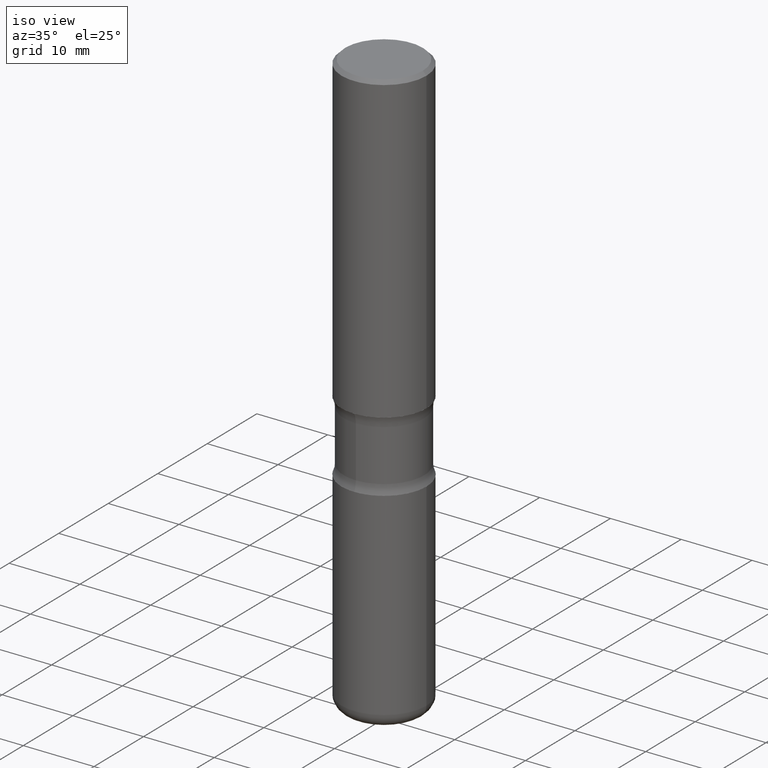
[diagram: clean part render]
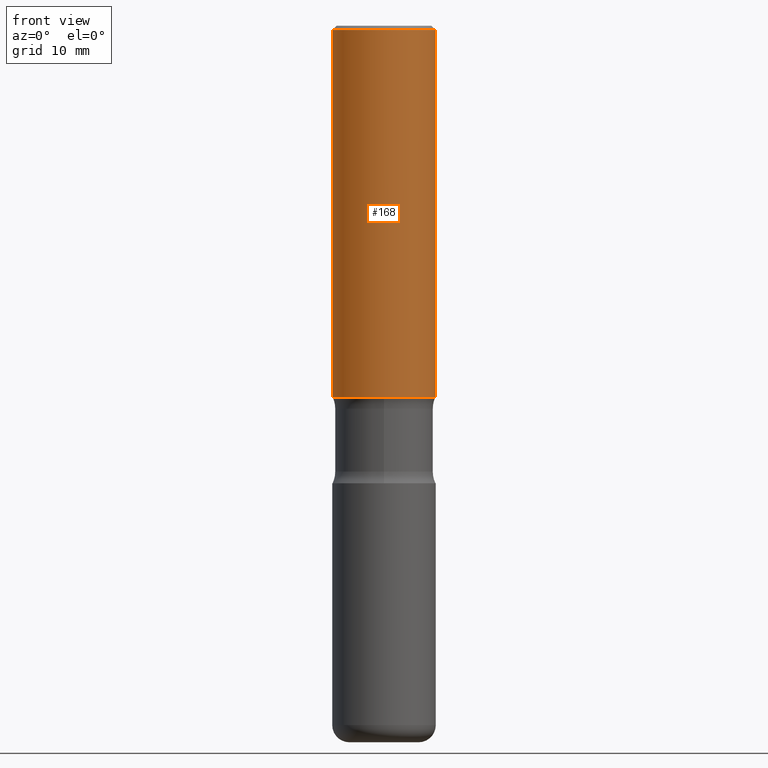
[diagram: tour spotlight — one face highlighted and labeled with its STEP entity id]
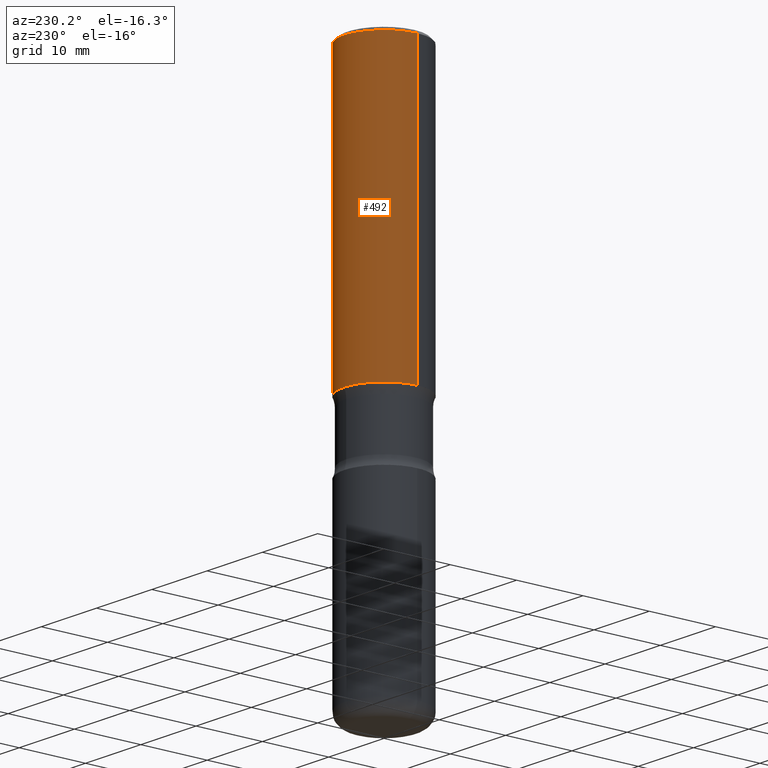
[diagram: tour spotlight — one face highlighted and labeled with its STEP entity id]
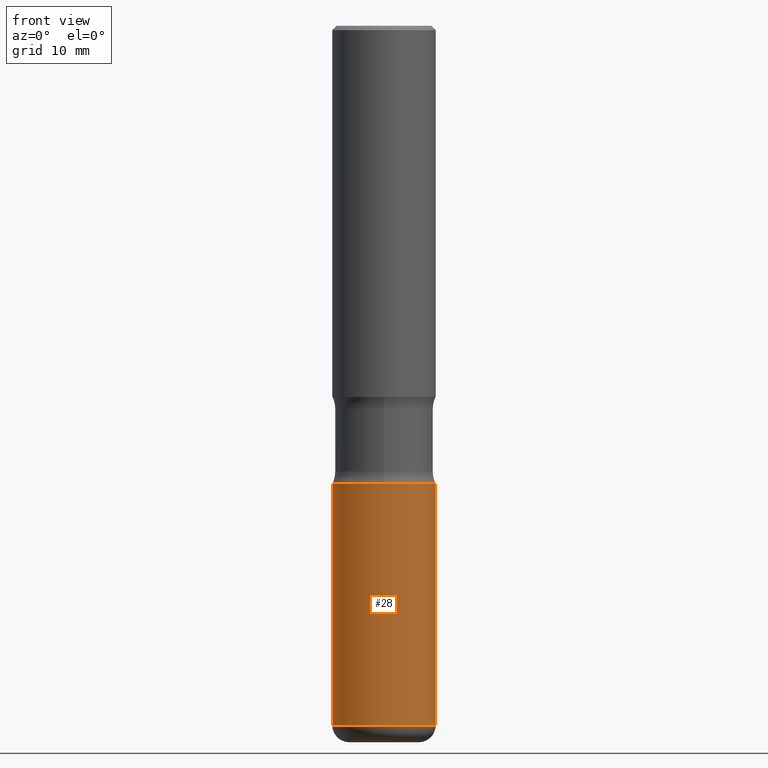
[diagram: tour spotlight — one face highlighted and labeled with its STEP entity id]
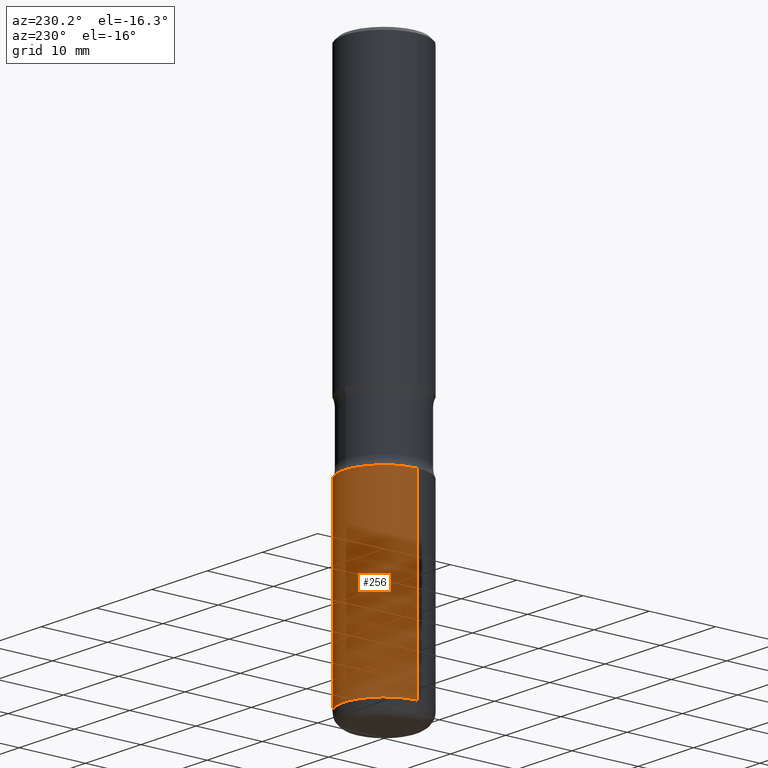
[diagram: tour spotlight — one face highlighted and labeled with its STEP entity id]
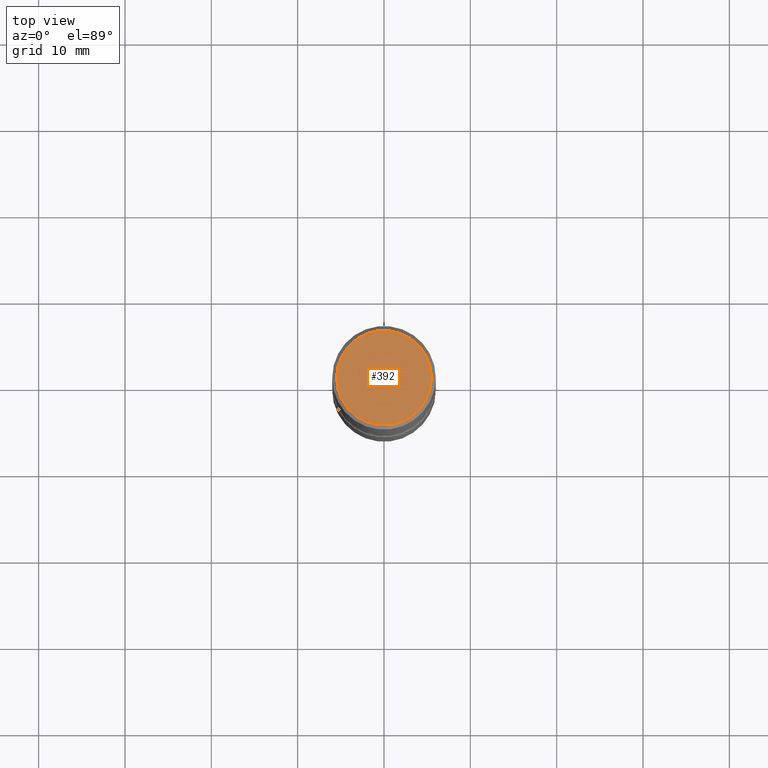
[diagram: tour spotlight — one face highlighted and labeled with its STEP entity id]
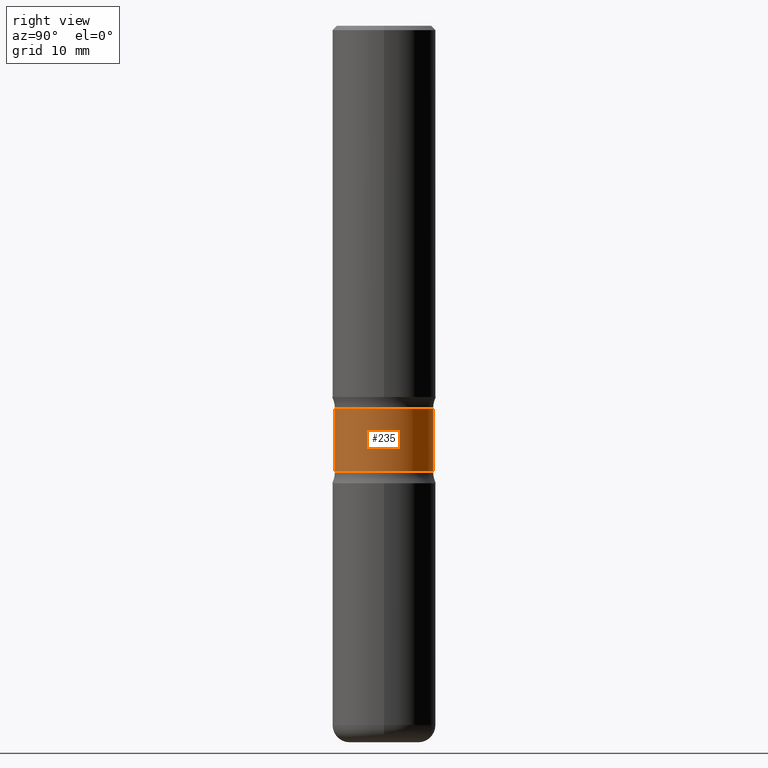
[diagram: tour spotlight — one face highlighted and labeled with its STEP entity id]
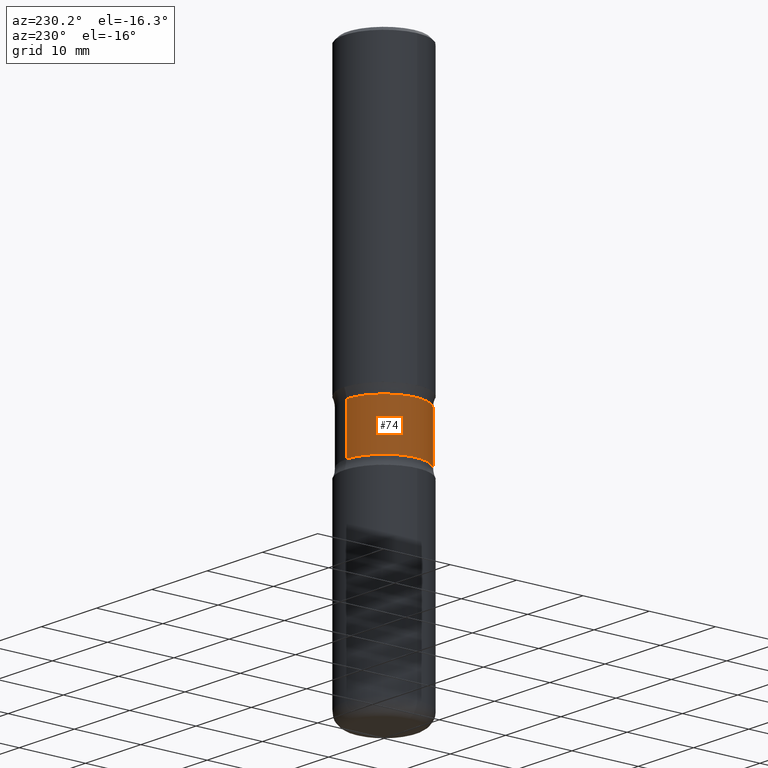
[diagram: tour spotlight — one face highlighted and labeled with its STEP entity id]
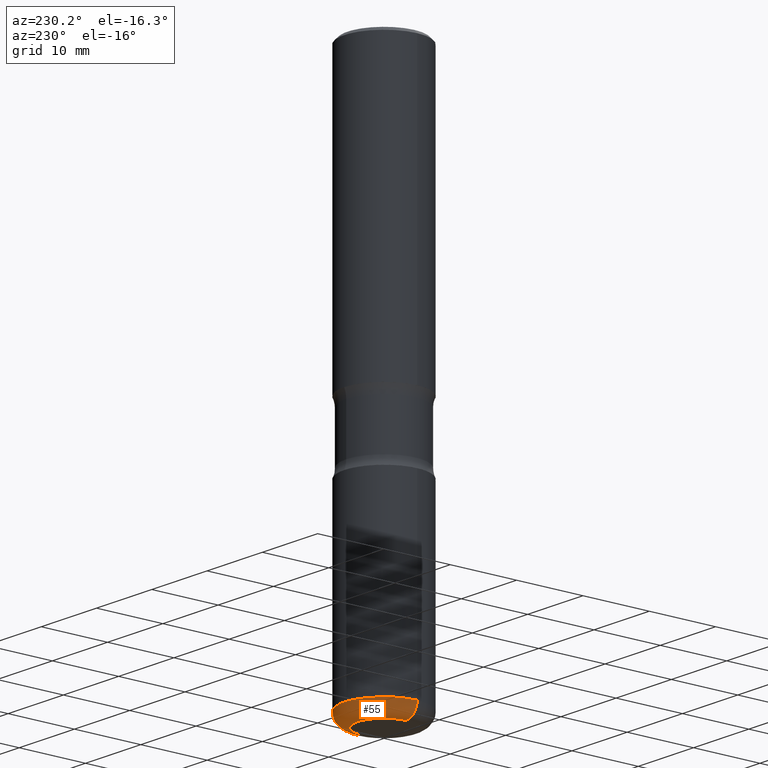
[diagram: tour spotlight — one face highlighted and labeled with its STEP entity id]
A machine part: a face-by-face anatomy tour. The part has 20 B-rep faces; the first image is the clean iso view, then the 8 largest visible faces are spotlighted one at a time (largest first), each with its STEP entity span.

Face 1 — front view, entity #168. In plain terms, the highlighted cylindrical surface (partial cylindrical patch) has radius 5.9995 mm, axis along (-0, 0, 1).
Definition (entity closure, byte-faithful):
#1 = CARTESIAN_POINT ( 'NONE',  ( -0.2362000000000004374, -1.311977250786849481E-15, -1.692899999999999627 ) ) ;
#3 = AXIS2_PLACEMENT_3D ( 'NONE', #71, #399, #204 ) ;
#33 = DIRECTION ( 'NONE',  ( -2.445468806185136877E-29, 3.491481338843145188E-15, 1.000000000000000000 ) ) ;
#44 = DIRECTION ( 'NONE',  ( -2.445468806185136597E-29, 3.491481338843145583E-15, 1.000000000000000000 ) ) ;
#71 = CARTESIAN_POINT ( 'NONE',  ( 4.890937612370289799E-31, -6.982962677686315028E-17, -0.02000000000000006981 ) ) ;
#79 = CIRCLE ( 'NONE', #270, 0.2362000000000004374 ) ;
#85 = CARTESIAN_POINT ( 'NONE',  ( -0.2362000000000000210, 1.579546157692633424E-15, -0.02000000000000006981 ) ) ;
#86 = ORIENTED_EDGE ( 'NONE', *, *, #292, .T. ) ;
#94 = DIRECTION ( 'NONE',  ( 1.000000000000000000, -6.982962677686267499E-15, 0.000000000000000000 ) ) ;
#114 = EDGE_CURVE ( 'NONE', #144, #373, #135, .T. ) ;
#135 = LINE ( 'NONE', #420, #328 ) ;
#144 = VERTEX_POINT ( 'NONE', #1 ) ;
#168 = ADVANCED_FACE ( 'NONE', ( #340 ), #258, .T. ) ;
#194 = CARTESIAN_POINT ( 'NONE',  ( 0.000000000000000000, 0.000000000000000000, 0.000000000000000000 ) ) ;
#204 = DIRECTION ( 'NONE',  ( 1.000000000000000000, -6.982962677686267499E-15, 0.000000000000000000 ) ) ;
#219 = CIRCLE ( 'NONE', #3, 0.2362000000000000210 ) ;
#258 = CYLINDRICAL_SURFACE ( 'NONE', #521, 0.2362000000000002431 ) ;
#262 = EDGE_LOOP ( 'NONE', ( #552, #325, #86, #408 ) ) ;
#266 = CARTESIAN_POINT ( 'NONE',  ( 0.2362000000000000210, -1.690279253850499166E-15, -0.02000000000000006981 ) ) ;
#270 = AXIS2_PLACEMENT_3D ( 'NONE', #429, #44, #94 ) ;
#292 = EDGE_CURVE ( 'NONE', #464, #394, #473, .T. ) ;
#312 = VECTOR ( 'NONE', #342, 39.37007874015748143 ) ;
#325 = ORIENTED_EDGE ( 'NONE', *, *, #335, .T. ) ;
#328 = VECTOR ( 'NONE', #33, 39.37007874015748143 ) ;
#335 = EDGE_CURVE ( 'NONE', #144, #464, #79, .T. ) ;
#340 = FACE_OUTER_BOUND ( 'NONE', #262, .T. ) ;
#342 = DIRECTION ( 'NONE',  ( -2.445468806185136877E-29, 3.491481338843145188E-15, 1.000000000000000000 ) ) ;
#373 = VERTEX_POINT ( 'NONE', #85 ) ;
#394 = VERTEX_POINT ( 'NONE', #266 ) ;
#399 = DIRECTION ( 'NONE',  ( -2.445468806185136597E-29, 3.491481338843145583E-15, 1.000000000000000000 ) ) ;
#408 = ORIENTED_EDGE ( 'NONE', *, *, #535, .F. ) ;
#420 = CARTESIAN_POINT ( 'NONE',  ( -0.2362000000000002431, 1.678301941865358366E-15, -1.161852468318209878E-29 ) ) ;
#427 = DIRECTION ( 'NONE',  ( -2.445468806185136597E-29, 3.491481338843145583E-15, 1.000000000000000000 ) ) ;
#429 = CARTESIAN_POINT ( 'NONE',  ( 4.139934141990816676E-29, -5.910728758527559497E-15, -1.692899999999999627 ) ) ;
#457 = CARTESIAN_POINT ( 'NONE',  ( 0.2362000000000004374, -7.560104542997059178E-15, -1.692899999999999627 ) ) ;
#464 = VERTEX_POINT ( 'NONE', #457 ) ;
#473 = LINE ( 'NONE', #560, #312 ) ;
#519 = DIRECTION ( 'NONE',  ( 1.000000000000000000, -6.982962677686266711E-15, 4.876176775795935793E-29 ) ) ;
#521 = AXIS2_PLACEMENT_3D ( 'NONE', #194, #427, #519 ) ;
#535 = EDGE_CURVE ( 'NONE', #373, #394, #219, .T. ) ;
#552 = ORIENTED_EDGE ( 'NONE', *, *, #114, .F. ) ;
#560 = CARTESIAN_POINT ( 'NONE',  ( 0.2362000000000002431, -1.649375784469497906E-15, 1.151752954443001209E-29 ) ) ;

Face 2 — auxiliary view, entity #492. In plain terms, the highlighted cylindrical surface (partial cylindrical patch) has radius 5.9995 mm, axis along (-0, 0, 1).
Definition (entity closure, byte-faithful):
#1 = CARTESIAN_POINT ( 'NONE',  ( -0.2362000000000004374, -1.311977250786849481E-15, -1.692899999999999627 ) ) ;
#17 = AXIS2_PLACEMENT_3D ( 'NONE', #154, #543, #280 ) ;
#33 = DIRECTION ( 'NONE',  ( -2.445468806185136877E-29, 3.491481338843145188E-15, 1.000000000000000000 ) ) ;
#63 = ORIENTED_EDGE ( 'NONE', *, *, #401, .F. ) ;
#72 = ORIENTED_EDGE ( 'NONE', *, *, #292, .F. ) ;
#85 = CARTESIAN_POINT ( 'NONE',  ( -0.2362000000000000210, 1.579546157692633424E-15, -0.02000000000000006981 ) ) ;
#114 = EDGE_CURVE ( 'NONE', #144, #373, #135, .T. ) ;
#127 = EDGE_CURVE ( 'NONE', #464, #144, #436, .T. ) ;
#135 = LINE ( 'NONE', #420, #328 ) ;
#144 = VERTEX_POINT ( 'NONE', #1 ) ;
#154 = CARTESIAN_POINT ( 'NONE',  ( 4.890937612370289799E-31, -6.982962677686315028E-17, -0.02000000000000006981 ) ) ;
#230 = ORIENTED_EDGE ( 'NONE', *, *, #127, .T. ) ;
#249 = EDGE_LOOP ( 'NONE', ( #230, #303, #63, #72 ) ) ;
#266 = CARTESIAN_POINT ( 'NONE',  ( 0.2362000000000000210, -1.690279253850499166E-15, -0.02000000000000006981 ) ) ;
#280 = DIRECTION ( 'NONE',  ( 1.000000000000000000, -6.982962677686267499E-15, 0.000000000000000000 ) ) ;
#291 = AXIS2_PLACEMENT_3D ( 'NONE', #421, #332, #460 ) ;
#292 = EDGE_CURVE ( 'NONE', #464, #394, #473, .T. ) ;
#303 = ORIENTED_EDGE ( 'NONE', *, *, #114, .T. ) ;
#312 = VECTOR ( 'NONE', #342, 39.37007874015748143 ) ;
#327 = DIRECTION ( 'NONE',  ( -2.445468806185136597E-29, 3.491481338843145583E-15, 1.000000000000000000 ) ) ;
#328 = VECTOR ( 'NONE', #33, 39.37007874015748143 ) ;
#332 = DIRECTION ( 'NONE',  ( -2.445468806185136597E-29, 3.491481338843145583E-15, 1.000000000000000000 ) ) ;
#338 = AXIS2_PLACEMENT_3D ( 'NONE', #512, #327, #435 ) ;
#342 = DIRECTION ( 'NONE',  ( -2.445468806185136877E-29, 3.491481338843145188E-15, 1.000000000000000000 ) ) ;
#373 = VERTEX_POINT ( 'NONE', #85 ) ;
#374 = CYLINDRICAL_SURFACE ( 'NONE', #338, 0.2362000000000002431 ) ;
#394 = VERTEX_POINT ( 'NONE', #266 ) ;
#401 = EDGE_CURVE ( 'NONE', #394, #373, #456, .T. ) ;
#420 = CARTESIAN_POINT ( 'NONE',  ( -0.2362000000000002431, 1.678301941865358366E-15, -1.161852468318209878E-29 ) ) ;
#421 = CARTESIAN_POINT ( 'NONE',  ( 4.139934141990816676E-29, -5.910728758527559497E-15, -1.692899999999999627 ) ) ;
#435 = DIRECTION ( 'NONE',  ( 1.000000000000000000, -6.982962677686266711E-15, 4.876176775795935793E-29 ) ) ;
#436 = CIRCLE ( 'NONE', #291, 0.2362000000000004374 ) ;
#456 = CIRCLE ( 'NONE', #17, 0.2362000000000000210 ) ;
#457 = CARTESIAN_POINT ( 'NONE',  ( 0.2362000000000004374, -7.560104542997059178E-15, -1.692899999999999627 ) ) ;
#460 = DIRECTION ( 'NONE',  ( 1.000000000000000000, -6.982962677686267499E-15, 0.000000000000000000 ) ) ;
#464 = VERTEX_POINT ( 'NONE', #457 ) ;
#473 = LINE ( 'NONE', #560, #312 ) ;
#488 = FACE_OUTER_BOUND ( 'NONE', #249, .T. ) ;
#492 = ADVANCED_FACE ( 'NONE', ( #488 ), #374, .T. ) ;
#512 = CARTESIAN_POINT ( 'NONE',  ( 0.000000000000000000, 0.000000000000000000, 0.000000000000000000 ) ) ;
#543 = DIRECTION ( 'NONE',  ( -2.445468806185136597E-29, 3.491481338843145583E-15, 1.000000000000000000 ) ) ;
#560 = CARTESIAN_POINT ( 'NONE',  ( 0.2362000000000002431, -1.649375784469497906E-15, 1.151752954443001209E-29 ) ) ;

Face 3 — front view, entity #28. In plain terms, the highlighted cylindrical surface (partial cylindrical patch) has radius 5.9995 mm, axis along (-0, 0, 1).
Definition (entity closure, byte-faithful):
#5 = LINE ( 'NONE', #88, #352 ) ;
#10 = CIRCLE ( 'NONE', #184, 0.2362000000000002153 ) ;
#28 = ADVANCED_FACE ( 'NONE', ( #187 ), #261, .T. ) ;
#41 = CARTESIAN_POINT ( 'NONE',  ( -0.2362000000000002153, 1.678301941865358169E-15, -1.161852468318209878E-29 ) ) ;
#46 = EDGE_CURVE ( 'NONE', #152, #108, #57, .T. ) ;
#50 = DIRECTION ( 'NONE',  ( -2.445468806185136597E-29, 3.491481338843145583E-15, 1.000000000000000000 ) ) ;
#54 = ORIENTED_EDGE ( 'NONE', *, *, #387, .F. ) ;
#57 = CIRCLE ( 'NONE', #131, 0.2362000000000002153 ) ;
#88 = CARTESIAN_POINT ( 'NONE',  ( 0.2362000000000002153, -1.649375784469497708E-15, 1.151752954443001069E-29 ) ) ;
#105 = CARTESIAN_POINT ( 'NONE',  ( 0.2362000000000003264, -1.278370977404028805E-14, -3.188999999999999169 ) ) ;
#106 = DIRECTION ( 'NONE',  ( -2.445468806185136597E-29, 3.491481338843145583E-15, 1.000000000000000000 ) ) ;
#108 = VERTEX_POINT ( 'NONE', #105 ) ;
#131 = AXIS2_PLACEMENT_3D ( 'NONE', #151, #106, #273 ) ;
#141 = EDGE_LOOP ( 'NONE', ( #243, #316, #334, #54 ) ) ;
#151 = CARTESIAN_POINT ( 'NONE',  ( 7.798600022924399065E-29, -1.113433398957078995E-14, -3.188999999999999169 ) ) ;
#152 = VERTEX_POINT ( 'NONE', #434 ) ;
#160 = EDGE_CURVE ( 'NONE', #152, #322, #384, .T. ) ;
#184 = AXIS2_PLACEMENT_3D ( 'NONE', #339, #254, #472 ) ;
#187 = FACE_OUTER_BOUND ( 'NONE', #141, .T. ) ;
#218 = AXIS2_PLACEMENT_3D ( 'NONE', #295, #50, #354 ) ;
#234 = EDGE_CURVE ( 'NONE', #108, #433, #5, .T. ) ;
#243 = ORIENTED_EDGE ( 'NONE', *, *, #160, .F. ) ;
#254 = DIRECTION ( 'NONE',  ( -2.445468806185136597E-29, 3.491481338843145583E-15, 1.000000000000000000 ) ) ;
#261 = CYLINDRICAL_SURFACE ( 'NONE', #218, 0.2362000000000002153 ) ;
#269 = DIRECTION ( 'NONE',  ( -2.445468806185136877E-29, 3.491481338843145188E-15, 1.000000000000000000 ) ) ;
#273 = DIRECTION ( 'NONE',  ( 1.000000000000000000, -6.982962677686266711E-15, 0.000000000000000000 ) ) ;
#295 = CARTESIAN_POINT ( 'NONE',  ( 0.000000000000000000, 0.000000000000000000, 0.000000000000000000 ) ) ;
#316 = ORIENTED_EDGE ( 'NONE', *, *, #46, .T. ) ;
#322 = VERTEX_POINT ( 'NONE', #496 ) ;
#334 = ORIENTED_EDGE ( 'NONE', *, *, #234, .T. ) ;
#339 = CARTESIAN_POINT ( 'NONE',  ( 5.102715210985905155E-29, -7.285324961630105839E-15, -2.086599999999999344 ) ) ;
#352 = VECTOR ( 'NONE', #558, 39.37007874015748143 ) ;
#354 = DIRECTION ( 'NONE',  ( 1.000000000000000000, -6.982962677686266711E-15, 4.876176775795935793E-29 ) ) ;
#358 = CARTESIAN_POINT ( 'NONE',  ( 0.2362000000000002153, -8.934700746099602364E-15, -2.086599999999999344 ) ) ;
#384 = LINE ( 'NONE', #41, #508 ) ;
#387 = EDGE_CURVE ( 'NONE', #322, #433, #10, .T. ) ;
#433 = VERTEX_POINT ( 'NONE', #358 ) ;
#434 = CARTESIAN_POINT ( 'NONE',  ( -0.2362000000000003264, -9.456032047705430396E-15, -3.188999999999999169 ) ) ;
#472 = DIRECTION ( 'NONE',  ( 1.000000000000000000, -6.982962677686266711E-15, 0.000000000000000000 ) ) ;
#496 = CARTESIAN_POINT ( 'NONE',  ( -0.2362000000000002153, -7.531527533735089132E-15, -2.086599999999999344 ) ) ;
#508 = VECTOR ( 'NONE', #269, 39.37007874015748143 ) ;
#558 = DIRECTION ( 'NONE',  ( -2.445468806185136877E-29, 3.491481338843145188E-15, 1.000000000000000000 ) ) ;

Face 4 — auxiliary view, entity #256. In plain terms, the highlighted cylindrical surface (partial cylindrical patch) has radius 5.9995 mm, axis along (-0, 0, 1).
Definition (entity closure, byte-faithful):
#5 = LINE ( 'NONE', #88, #352 ) ;
#36 = FACE_OUTER_BOUND ( 'NONE', #217, .T. ) ;
#41 = CARTESIAN_POINT ( 'NONE',  ( -0.2362000000000002153, 1.678301941865358169E-15, -1.161852468318209878E-29 ) ) ;
#80 = DIRECTION ( 'NONE',  ( 1.000000000000000000, -6.982962677686266711E-15, 0.000000000000000000 ) ) ;
#88 = CARTESIAN_POINT ( 'NONE',  ( 0.2362000000000002153, -1.649375784469497708E-15, 1.151752954443001069E-29 ) ) ;
#89 = AXIS2_PLACEMENT_3D ( 'NONE', #485, #467, #80 ) ;
#105 = CARTESIAN_POINT ( 'NONE',  ( 0.2362000000000003264, -1.278370977404028805E-14, -3.188999999999999169 ) ) ;
#108 = VERTEX_POINT ( 'NONE', #105 ) ;
#139 = CIRCLE ( 'NONE', #378, 0.2362000000000002153 ) ;
#152 = VERTEX_POINT ( 'NONE', #434 ) ;
#160 = EDGE_CURVE ( 'NONE', #152, #322, #384, .T. ) ;
#193 = CARTESIAN_POINT ( 'NONE',  ( 0.000000000000000000, 0.000000000000000000, 0.000000000000000000 ) ) ;
#203 = ORIENTED_EDGE ( 'NONE', *, *, #160, .T. ) ;
#217 = EDGE_LOOP ( 'NONE', ( #536, #203, #309, #240 ) ) ;
#234 = EDGE_CURVE ( 'NONE', #108, #433, #5, .T. ) ;
#240 = ORIENTED_EDGE ( 'NONE', *, *, #234, .F. ) ;
#255 = CIRCLE ( 'NONE', #89, 0.2362000000000002153 ) ;
#256 = ADVANCED_FACE ( 'NONE', ( #36 ), #476, .T. ) ;
#269 = DIRECTION ( 'NONE',  ( -2.445468806185136877E-29, 3.491481338843145188E-15, 1.000000000000000000 ) ) ;
#309 = ORIENTED_EDGE ( 'NONE', *, *, #315, .F. ) ;
#315 = EDGE_CURVE ( 'NONE', #433, #322, #255, .T. ) ;
#322 = VERTEX_POINT ( 'NONE', #496 ) ;
#337 = AXIS2_PLACEMENT_3D ( 'NONE', #193, #351, #381 ) ;
#351 = DIRECTION ( 'NONE',  ( -2.445468806185136597E-29, 3.491481338843145583E-15, 1.000000000000000000 ) ) ;
#352 = VECTOR ( 'NONE', #558, 39.37007874015748143 ) ;
#358 = CARTESIAN_POINT ( 'NONE',  ( 0.2362000000000002153, -8.934700746099602364E-15, -2.086599999999999344 ) ) ;
#378 = AXIS2_PLACEMENT_3D ( 'NONE', #443, #405, #462 ) ;
#381 = DIRECTION ( 'NONE',  ( 1.000000000000000000, -6.982962677686266711E-15, 4.876176775795935793E-29 ) ) ;
#384 = LINE ( 'NONE', #41, #508 ) ;
#405 = DIRECTION ( 'NONE',  ( -2.445468806185136597E-29, 3.491481338843145583E-15, 1.000000000000000000 ) ) ;
#431 = EDGE_CURVE ( 'NONE', #108, #152, #139, .T. ) ;
#433 = VERTEX_POINT ( 'NONE', #358 ) ;
#434 = CARTESIAN_POINT ( 'NONE',  ( -0.2362000000000003264, -9.456032047705430396E-15, -3.188999999999999169 ) ) ;
#443 = CARTESIAN_POINT ( 'NONE',  ( 7.798600022924399065E-29, -1.113433398957078995E-14, -3.188999999999999169 ) ) ;
#462 = DIRECTION ( 'NONE',  ( 1.000000000000000000, -6.982962677686266711E-15, 0.000000000000000000 ) ) ;
#467 = DIRECTION ( 'NONE',  ( -2.445468806185136597E-29, 3.491481338843145583E-15, 1.000000000000000000 ) ) ;
#476 = CYLINDRICAL_SURFACE ( 'NONE', #337, 0.2362000000000002153 ) ;
#485 = CARTESIAN_POINT ( 'NONE',  ( 5.102715210985905155E-29, -7.285324961630105839E-15, -2.086599999999999344 ) ) ;
#496 = CARTESIAN_POINT ( 'NONE',  ( -0.2362000000000002153, -7.531527533735089132E-15, -2.086599999999999344 ) ) ;
#508 = VECTOR ( 'NONE', #269, 39.37007874015748143 ) ;
#536 = ORIENTED_EDGE ( 'NONE', *, *, #431, .T. ) ;
#558 = DIRECTION ( 'NONE',  ( -2.445468806185136877E-29, 3.491481338843145188E-15, 1.000000000000000000 ) ) ;

Face 5 — top view, entity #392. In plain terms, the highlighted planar face has unit normal (0, -0, -1).
Definition (entity closure, byte-faithful):
#11 = VERTEX_POINT ( 'NONE', #20 ) ;
#20 = CARTESIAN_POINT ( 'NONE',  ( -0.2162000000000000033, 1.544631344304202170E-15, -2.134256245051273683E-17 ) ) ;
#38 = CARTESIAN_POINT ( 'NONE',  ( 1.509716530915770718E-15, 0.2162000000000000033, -7.655295466831390880E-16 ) ) ;
#61 = DIRECTION ( 'NONE',  ( -2.445468806185136597E-29, 3.491481338843145583E-15, 1.000000000000000000 ) ) ;
#87 = FACE_OUTER_BOUND ( 'NONE', #95, .T. ) ;
#95 = EDGE_LOOP ( 'NONE', ( #425, #365 ) ) ;
#96 = DIRECTION ( 'NONE',  ( -1.000000000000000000, 6.982962677686265922E-15, -4.876176775795935793E-29 ) ) ;
#113 = DIRECTION ( 'NONE',  ( 1.000000000000000000, -6.982962677686266711E-15, 4.876655451117825523E-29 ) ) ;
#148 = AXIS2_PLACEMENT_3D ( 'NONE', #158, #61, #242 ) ;
#158 = CARTESIAN_POINT ( 'NONE',  ( 5.219257071676098903E-46, -7.451715851902235727E-32, -2.134256245050205639E-17 ) ) ;
#172 = CIRCLE ( 'NONE', #250, 0.2162000000000000033 ) ;
#180 = VERTEX_POINT ( 'NONE', #379 ) ;
#213 = CIRCLE ( 'NONE', #148, 0.2162000000000000033 ) ;
#242 = DIRECTION ( 'NONE',  ( 1.000000000000000000, -6.982962677686266711E-15, 4.876655451117825523E-29 ) ) ;
#250 = AXIS2_PLACEMENT_3D ( 'NONE', #287, #501, #113 ) ;
#277 = AXIS2_PLACEMENT_3D ( 'NONE', #38, #477, #96 ) ;
#287 = CARTESIAN_POINT ( 'NONE',  ( 5.219257071676098903E-46, -7.451715851902235727E-32, -2.134256245050205639E-17 ) ) ;
#365 = ORIENTED_EDGE ( 'NONE', *, *, #470, .T. ) ;
#379 = CARTESIAN_POINT ( 'NONE',  ( 0.2162000000000000033, -1.586759460484351988E-15, -2.134256245049122805E-17 ) ) ;
#392 = ADVANCED_FACE ( 'NONE', ( #87 ), #426, .F. ) ;
#425 = ORIENTED_EDGE ( 'NONE', *, *, #509, .T. ) ;
#426 = PLANE ( 'NONE',  #277 ) ;
#470 = EDGE_CURVE ( 'NONE', #180, #11, #213, .T. ) ;
#477 = DIRECTION ( 'NONE',  ( 2.438088387897960049E-29, -3.491481338843145188E-15, -1.000000000000000000 ) ) ;
#501 = DIRECTION ( 'NONE',  ( -2.445468806185136597E-29, 3.491481338843145583E-15, 1.000000000000000000 ) ) ;
#509 = EDGE_CURVE ( 'NONE', #11, #180, #172, .T. ) ;

Face 6 — right view, entity #235. In plain terms, the highlighted cylindrical surface (partial cylindrical patch) has radius 5.6896 mm, axis along (0, -0, -1).
Definition (entity closure, byte-faithful):
#8 = CARTESIAN_POINT ( 'NONE',  ( 4.973714950416923137E-29, -7.093372145566288471E-15, -2.032737582675856913 ) ) ;
#30 = CARTESIAN_POINT ( 'NONE',  ( 4.288805644831536135E-29, -6.074224824657373494E-15, -1.746762417324141614 ) ) ;
#67 = CARTESIAN_POINT ( 'NONE',  ( -1.536751551500743867E-15, -0.2240000000000115510, -3.267699999999999161 ) ) ;
#103 = CYLINDRICAL_SURFACE ( 'NONE', #183, 0.2240000000000000602 ) ;
#134 = VECTOR ( 'NONE', #539, 39.37007874015748143 ) ;
#145 = DIRECTION ( 'NONE',  ( 6.982962677686265922E-15, 1.000000000000000000, -2.439149994343091666E-15 ) ) ;
#146 = DIRECTION ( 'NONE',  ( 2.394995749868806294E-29, -3.563761628236091094E-15, -1.000000000000000000 ) ) ;
#162 = CARTESIAN_POINT ( 'NONE',  ( -1.578600589287187205E-15, -0.2240000000000060554, -1.746762417324140948 ) ) ;
#178 = CARTESIAN_POINT ( 'NONE',  ( 1.564183639801773497E-15, 0.2239999999999929270, -2.032737582675857801 ) ) ;
#183 = AXIS2_PLACEMENT_3D ( 'NONE', #305, #190, #145 ) ;
#190 = DIRECTION ( 'NONE',  ( 2.394995749868806294E-29, -3.563761628236091094E-15, -1.000000000000000000 ) ) ;
#199 = EDGE_LOOP ( 'NONE', ( #486, #353, #355, #220 ) ) ;
#220 = ORIENTED_EDGE ( 'NONE', *, *, #275, .F. ) ;
#235 = ADVANCED_FACE ( 'NONE', ( #308 ), #103, .T. ) ;
#238 = AXIS2_PLACEMENT_3D ( 'NONE', #8, #146, #313 ) ;
#275 = EDGE_CURVE ( 'NONE', #356, #502, #528, .T. ) ;
#283 = CIRCLE ( 'NONE', #447, 0.2240000000000000324 ) ;
#285 = EDGE_CURVE ( 'NONE', #502, #487, #343, .T. ) ;
#298 = DIRECTION ( 'NONE',  ( 2.394995749868806294E-29, -3.563761628236091094E-15, -1.000000000000000000 ) ) ;
#305 = CARTESIAN_POINT ( 'NONE',  ( 7.931444691155953223E-29, -1.149448382073975340E-14, -3.267699999999999605 ) ) ;
#308 = FACE_OUTER_BOUND ( 'NONE', #199, .T. ) ;
#313 = DIRECTION ( 'NONE',  ( 6.982962677686265922E-15, 1.000000000000000000, -3.658724991514637697E-15 ) ) ;
#343 = CIRCLE ( 'NONE', #238, 0.2240000000000000324 ) ;
#353 = ORIENTED_EDGE ( 'NONE', *, *, #468, .T. ) ;
#355 = ORIENTED_EDGE ( 'NONE', *, *, #285, .F. ) ;
#356 = VERTEX_POINT ( 'NONE', #520 ) ;
#363 = LINE ( 'NONE', #67, #134 ) ;
#371 = CARTESIAN_POINT ( 'NONE',  ( -1.578600589287179908E-15, -0.2240000000000071378, -2.032737582675856025 ) ) ;
#386 = EDGE_CURVE ( 'NONE', #356, #402, #283, .T. ) ;
#391 = DIRECTION ( 'NONE',  ( 2.394995749868806294E-29, -3.563761628236091094E-15, -1.000000000000000000 ) ) ;
#402 = VERTEX_POINT ( 'NONE', #162 ) ;
#409 = DIRECTION ( 'NONE',  ( 6.982962677686265922E-15, 1.000000000000000000, -3.658724991514637697E-15 ) ) ;
#437 = CARTESIAN_POINT ( 'NONE',  ( 1.564183639801803276E-15, 0.2239999999999885416, -3.267700000000000049 ) ) ;
#447 = AXIS2_PLACEMENT_3D ( 'NONE', #30, #298, #409 ) ;
#468 = EDGE_CURVE ( 'NONE', #402, #487, #363, .T. ) ;
#479 = VECTOR ( 'NONE', #391, 39.37007874015748143 ) ;
#486 = ORIENTED_EDGE ( 'NONE', *, *, #386, .T. ) ;
#487 = VERTEX_POINT ( 'NONE', #371 ) ;
#502 = VERTEX_POINT ( 'NONE', #178 ) ;
#520 = CARTESIAN_POINT ( 'NONE',  ( 1.564183639801766791E-15, 0.2239999999999939539, -1.746762417324142502 ) ) ;
#528 = LINE ( 'NONE', #437, #479 ) ;
#539 = DIRECTION ( 'NONE',  ( 2.394995749868806294E-29, -3.563761628236091094E-15, -1.000000000000000000 ) ) ;

Face 7 — auxiliary view, entity #74. In plain terms, the highlighted cylindrical surface (partial cylindrical patch) has radius 5.6896 mm, axis along (0, -0, -1).
Definition (entity closure, byte-faithful):
#6 = ORIENTED_EDGE ( 'NONE', *, *, #546, .F. ) ;
#67 = CARTESIAN_POINT ( 'NONE',  ( -1.536751551500743867E-15, -0.2240000000000115510, -3.267699999999999161 ) ) ;
#74 = ADVANCED_FACE ( 'NONE', ( #306 ), #419, .T. ) ;
#84 = DIRECTION ( 'NONE',  ( 6.982962677686265922E-15, 1.000000000000000000, -3.658724991514637697E-15 ) ) ;
#101 = CIRCLE ( 'NONE', #159, 0.2240000000000000324 ) ;
#107 = ORIENTED_EDGE ( 'NONE', *, *, #275, .T. ) ;
#130 = ORIENTED_EDGE ( 'NONE', *, *, #468, .F. ) ;
#134 = VECTOR ( 'NONE', #539, 39.37007874015748143 ) ;
#159 = AXIS2_PLACEMENT_3D ( 'NONE', #300, #222, #84 ) ;
#162 = CARTESIAN_POINT ( 'NONE',  ( -1.578600589287187205E-15, -0.2240000000000060554, -1.746762417324140948 ) ) ;
#178 = CARTESIAN_POINT ( 'NONE',  ( 1.564183639801773497E-15, 0.2239999999999929270, -2.032737582675857801 ) ) ;
#188 = DIRECTION ( 'NONE',  ( 6.982962677686265922E-15, 1.000000000000000000, -2.439149994343091666E-15 ) ) ;
#205 = AXIS2_PLACEMENT_3D ( 'NONE', #331, #469, #188 ) ;
#222 = DIRECTION ( 'NONE',  ( 2.394995749868806294E-29, -3.563761628236091094E-15, -1.000000000000000000 ) ) ;
#237 = DIRECTION ( 'NONE',  ( 6.982962677686265922E-15, 1.000000000000000000, -3.658724991514637697E-15 ) ) ;
#275 = EDGE_CURVE ( 'NONE', #356, #502, #528, .T. ) ;
#300 = CARTESIAN_POINT ( 'NONE',  ( 4.973714950416923137E-29, -7.093372145566288471E-15, -2.032737582675856913 ) ) ;
#306 = FACE_OUTER_BOUND ( 'NONE', #380, .T. ) ;
#331 = CARTESIAN_POINT ( 'NONE',  ( 7.931444691155953223E-29, -1.149448382073975340E-14, -3.267699999999999605 ) ) ;
#356 = VERTEX_POINT ( 'NONE', #520 ) ;
#362 = DIRECTION ( 'NONE',  ( 2.394995749868806294E-29, -3.563761628236091094E-15, -1.000000000000000000 ) ) ;
#363 = LINE ( 'NONE', #67, #134 ) ;
#371 = CARTESIAN_POINT ( 'NONE',  ( -1.578600589287179908E-15, -0.2240000000000071378, -2.032737582675856025 ) ) ;
#380 = EDGE_LOOP ( 'NONE', ( #130, #534, #107, #6 ) ) ;
#391 = DIRECTION ( 'NONE',  ( 2.394995749868806294E-29, -3.563761628236091094E-15, -1.000000000000000000 ) ) ;
#398 = EDGE_CURVE ( 'NONE', #402, #356, #413, .T. ) ;
#402 = VERTEX_POINT ( 'NONE', #162 ) ;
#413 = CIRCLE ( 'NONE', #466, 0.2240000000000000324 ) ;
#419 = CYLINDRICAL_SURFACE ( 'NONE', #205, 0.2240000000000000602 ) ;
#437 = CARTESIAN_POINT ( 'NONE',  ( 1.564183639801803276E-15, 0.2239999999999885416, -3.267700000000000049 ) ) ;
#439 = CARTESIAN_POINT ( 'NONE',  ( 4.288805644831536135E-29, -6.074224824657373494E-15, -1.746762417324141614 ) ) ;
#466 = AXIS2_PLACEMENT_3D ( 'NONE', #439, #362, #237 ) ;
#468 = EDGE_CURVE ( 'NONE', #402, #487, #363, .T. ) ;
#469 = DIRECTION ( 'NONE',  ( 2.394995749868806294E-29, -3.563761628236091094E-15, -1.000000000000000000 ) ) ;
#479 = VECTOR ( 'NONE', #391, 39.37007874015748143 ) ;
#487 = VERTEX_POINT ( 'NONE', #371 ) ;
#502 = VERTEX_POINT ( 'NONE', #178 ) ;
#520 = CARTESIAN_POINT ( 'NONE',  ( 1.564183639801766791E-15, 0.2239999999999939539, -1.746762417324142502 ) ) ;
#528 = LINE ( 'NONE', #437, #479 ) ;
#534 = ORIENTED_EDGE ( 'NONE', *, *, #398, .T. ) ;
#539 = DIRECTION ( 'NONE',  ( 2.394995749868806294E-29, -3.563761628236091094E-15, -1.000000000000000000 ) ) ;
#546 = EDGE_CURVE ( 'NONE', #487, #502, #101, .T. ) ;

Face 8 — auxiliary view, entity #55. In plain terms, the highlighted toroidal blend (fillet) surface has major radius 4.0005 mm and minor (blend) radius 1.999 mm.
Definition (entity closure, byte-faithful):
#4 = CARTESIAN_POINT ( 'NONE',  ( 7.991058417971171713E-29, -1.140911357093774644E-14, -3.267700000000000049 ) ) ;
#13 = EDGE_CURVE ( 'NONE', #120, #152, #276, .T. ) ;
#25 = TOROIDAL_SURFACE ( 'NONE', #345, 0.1575000000000002232, 0.07870000000000021423 ) ;
#29 = VERTEX_POINT ( 'NONE', #532 ) ;
#48 = FACE_OUTER_BOUND ( 'NONE', #442, .T. ) ;
#49 = CARTESIAN_POINT ( 'NONE',  ( 0.1575000000000002232, -1.223415061130637979E-14, -3.188999999999999613 ) ) ;
#55 = ADVANCED_FACE ( 'NONE', ( #48 ), #25, .T. ) ;
#75 = EDGE_CURVE ( 'NONE', #29, #120, #157, .T. ) ;
#76 = DIRECTION ( 'NONE',  ( 1.000000000000000000, -6.982962677686265133E-15, 0.000000000000000000 ) ) ;
#77 = ORIENTED_EDGE ( 'NONE', *, *, #13, .T. ) ;
#93 = CARTESIAN_POINT ( 'NONE',  ( 7.798600022924400186E-29, -1.113433398957079152E-14, -3.188999999999999613 ) ) ;
#100 = AXIS2_PLACEMENT_3D ( 'NONE', #4, #390, #76 ) ;
#105 = CARTESIAN_POINT ( 'NONE',  ( 0.2362000000000003264, -1.278370977404028805E-14, -3.188999999999999169 ) ) ;
#108 = VERTEX_POINT ( 'NONE', #105 ) ;
#120 = VERTEX_POINT ( 'NONE', #376 ) ;
#139 = CIRCLE ( 'NONE', #378, 0.2362000000000002153 ) ;
#142 = EDGE_CURVE ( 'NONE', #29, #108, #231, .T. ) ;
#152 = VERTEX_POINT ( 'NONE', #434 ) ;
#157 = CIRCLE ( 'NONE', #100, 0.1575000000000002232 ) ;
#165 = ORIENTED_EDGE ( 'NONE', *, *, #75, .T. ) ;
#169 = DIRECTION ( 'NONE',  ( -1.000000000000000000, 7.105427357600997914E-15, 0.000000000000000000 ) ) ;
#224 = DIRECTION ( 'NONE',  ( -2.445468806185136597E-29, 3.491481338843145583E-15, 1.000000000000000000 ) ) ;
#231 = CIRCLE ( 'NONE', #411, 0.07870000000000021423 ) ;
#248 = AXIS2_PLACEMENT_3D ( 'NONE', #369, #545, #169 ) ;
#264 = DIRECTION ( 'NONE',  ( -6.982962677686266711E-15, -1.000000000000000000, 3.491481338843145583E-15 ) ) ;
#276 = CIRCLE ( 'NONE', #248, 0.07870000000000021423 ) ;
#289 = DIRECTION ( 'NONE',  ( 1.000000000000000000, -6.982962677686268288E-15, 4.883557194083113462E-29 ) ) ;
#310 = DIRECTION ( 'NONE',  ( 1.000000000000000000, -6.982962677686276177E-15, 0.000000000000000000 ) ) ;
#345 = AXIS2_PLACEMENT_3D ( 'NONE', #93, #224, #289 ) ;
#369 = CARTESIAN_POINT ( 'NONE',  ( -0.1575000000000002232, -1.001522918074863234E-14, -3.188999999999999613 ) ) ;
#376 = CARTESIAN_POINT ( 'NONE',  ( -0.1575000000000002232, -9.873020404910509617E-15, -3.267700000000000049 ) ) ;
#378 = AXIS2_PLACEMENT_3D ( 'NONE', #443, #405, #462 ) ;
#390 = DIRECTION ( 'NONE',  ( -2.445468806185136597E-29, 3.491481338843145583E-15, 1.000000000000000000 ) ) ;
#405 = DIRECTION ( 'NONE',  ( -2.445468806185136597E-29, 3.491481338843145583E-15, 1.000000000000000000 ) ) ;
#411 = AXIS2_PLACEMENT_3D ( 'NONE', #49, #264, #310 ) ;
#431 = EDGE_CURVE ( 'NONE', #108, #152, #139, .T. ) ;
#434 = CARTESIAN_POINT ( 'NONE',  ( -0.2362000000000003264, -9.456032047705430396E-15, -3.188999999999999169 ) ) ;
#442 = EDGE_LOOP ( 'NONE', ( #165, #77, #498, #524 ) ) ;
#443 = CARTESIAN_POINT ( 'NONE',  ( 7.798600022924399065E-29, -1.113433398957078995E-14, -3.188999999999999169 ) ) ;
#462 = DIRECTION ( 'NONE',  ( 1.000000000000000000, -6.982962677686266711E-15, 0.000000000000000000 ) ) ;
#498 = ORIENTED_EDGE ( 'NONE', *, *, #431, .F. ) ;
#524 = ORIENTED_EDGE ( 'NONE', *, *, #142, .F. ) ;
#532 = CARTESIAN_POINT ( 'NONE',  ( 0.1575000000000002232, -1.250893019267333471E-14, -3.267700000000000049 ) ) ;
#545 = DIRECTION ( 'NONE',  ( 7.105427357601001859E-15, 1.000000000000000000, -3.491481338843145583E-15 ) ) ;